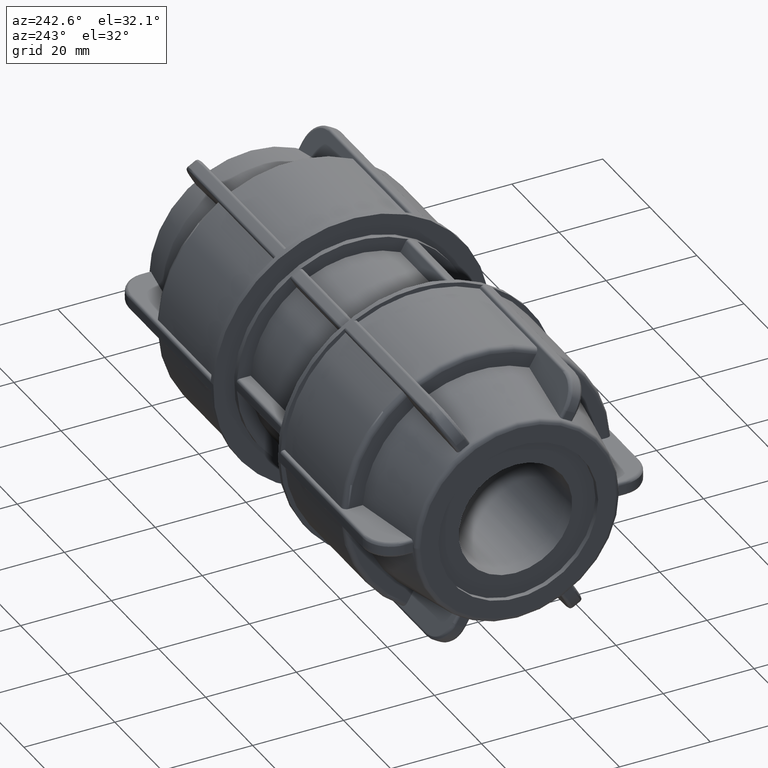
[diagram: clean part render]
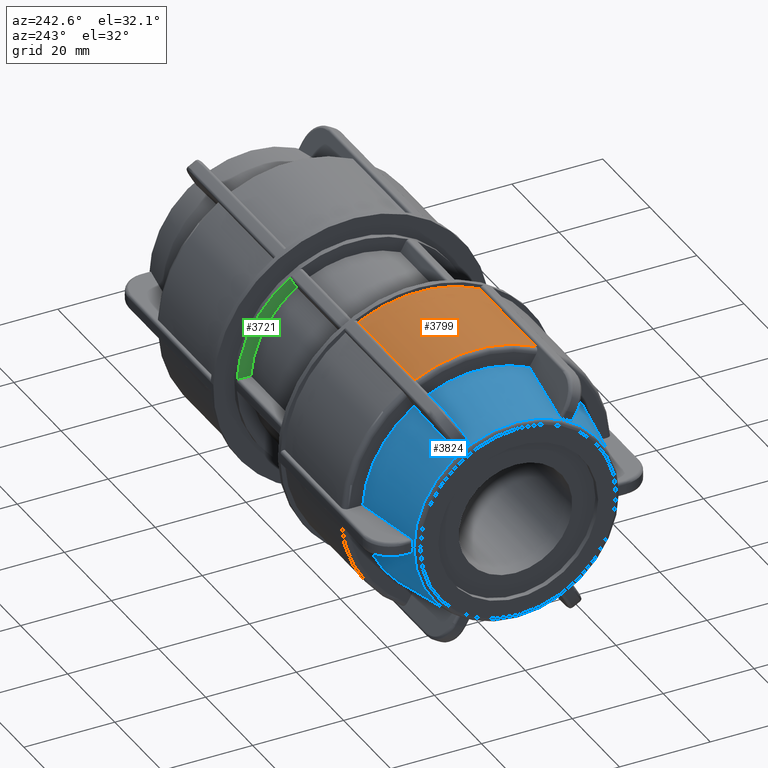
[diagram: same view with three faces highlighted in distinct colors, each labeled with its STEP entity id]
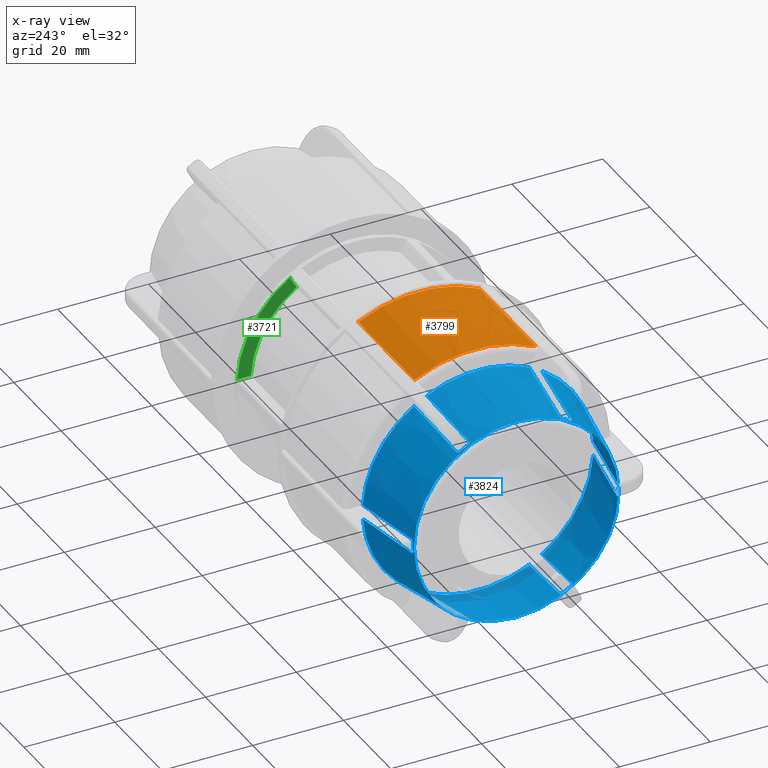
[diagram: x-ray of the same camera — body ghosted, the three highlighted faces saturated]
A machine part, auxiliary view with three faces highlighted in distinct colors.
The next image is the same camera in x-ray (body ghosted, the three faces saturated) — at least one of them is partly hidden behind the body in this view.
Their STEP definitions:

[orange] entity #3799 — the highlighted cylindrical surface (partial cylindrical patch) has radius 29.585 mm, axis along (1, 0, 0).
#413=FACE_OUTER_BOUND('',#655,.T.);
#655=EDGE_LOOP('',(#2968,#2969,#2970,#2971));
#894=LINE('',#6319,#1122);
#909=LINE('',#6588,#1137);
#1122=VECTOR('',#4796,23.94);
#1137=VECTOR('',#4861,23.94);
#1368=CIRCLE('',#4137,29.585);
#1374=CIRCLE('',#4149,29.585);
#1640=VERTEX_POINT('',#6316);
#1641=VERTEX_POINT('',#6318);
#1668=VERTEX_POINT('',#6576);
#1669=VERTEX_POINT('',#6587);
#2084=EDGE_CURVE('',#1641,#1640,#894,.T.);
#2127=EDGE_CURVE('',#1669,#1668,#909,.T.);
#2165=EDGE_CURVE('',#1641,#1668,#1368,.T.);
#2173=EDGE_CURVE('',#1669,#1640,#1374,.T.);
#2968=ORIENTED_EDGE('',*,*,#2084,.T.);
#2969=ORIENTED_EDGE('',*,*,#2173,.F.);
#2970=ORIENTED_EDGE('',*,*,#2127,.T.);
#2971=ORIENTED_EDGE('',*,*,#2165,.F.);
#3647=CYLINDRICAL_SURFACE('',#4148,29.585);
#3799=ADVANCED_FACE('',(#413),#3647,.T.);
#4137=AXIS2_PLACEMENT_3D('',#6712,#4927,#4928);
#4148=AXIS2_PLACEMENT_3D('',#6736,#4950,#4951);
#4149=AXIS2_PLACEMENT_3D('',#6737,#4952,#4953);
#4796=DIRECTION('',(1.,3.06161699786838E-16,0.));
#4861=DIRECTION('',(-1.,-3.06161699786838E-16,0.));
#4927=DIRECTION('center_axis',(-1.,-3.06161699786838E-16,0.));
#4928=DIRECTION('ref_axis',(3.04903230524908E-16,-1.,1.83697019872103E-16));
#4950=DIRECTION('center_axis',(1.,3.06161699786838E-16,0.));
#4951=DIRECTION('ref_axis',(-1.75123446677369E-16,1.,0.));
#4952=DIRECTION('center_axis',(1.,3.06161699786838E-16,0.));
#4953=DIRECTION('ref_axis',(0.,0.,-1.));
#6316=CARTESIAN_POINT('',(-14.82,-13.3852109289219,26.3838653989189));
#6318=CARTESIAN_POINT('',(-38.76,-13.3852109289219,26.3838653989189));
#6319=CARTESIAN_POINT('',(-27.36,-13.3852109289219,26.3838653989189));
#6576=CARTESIAN_POINT('',(-38.76,13.3852109289219,26.3838653989189));
#6587=CARTESIAN_POINT('',(-14.82,13.3852109289219,26.3838653989189));
#6588=CARTESIAN_POINT('',(-27.36,13.3852109289219,26.3838653989189));
#6712=CARTESIAN_POINT('Origin',(-38.76,-1.18668274837379E-14,0.));
#6736=CARTESIAN_POINT('Origin',(-27.36,-8.3765841061679E-15,0.));
#6737=CARTESIAN_POINT('Origin',(-14.82,-4.53731639084095E-15,0.));

[blue] entity #3824 — the highlighted conical surface has half-angle 10 deg.
#15=CONICAL_SURFACE('',#4187,23.9075956850574,10.);
#43=(
BOUNDED_CURVE()
B_SPLINE_CURVE(2,(#5802,#5803,#5804),.UNSPECIFIED.,.F.,.F.)
B_SPLINE_CURVE_WITH_KNOTS((3,3),(0.0655542960106001,1.62073025413874),
 .UNSPECIFIED.)
CURVE()
GEOMETRIC_REPRESENTATION_ITEM()
RATIONAL_B_SPLINE_CURVE((1.0001342619013,1.00165971064188,1.))
REPRESENTATION_ITEM('')
);
#44=(
BOUNDED_CURVE()
B_SPLINE_CURVE(2,(#6011,#6012,#6013),.UNSPECIFIED.,.F.,.F.)
B_SPLINE_CURVE_WITH_KNOTS((3,3),(0.0655542960451658,1.62073025413874),
 .UNSPECIFIED.)
CURVE()
GEOMETRIC_REPRESENTATION_ITEM()
RATIONAL_B_SPLINE_CURVE((1.00013426190728,1.00165971071495,1.))
REPRESENTATION_ITEM('')
);
#45=(
BOUNDED_CURVE()
B_SPLINE_CURVE(2,(#6172,#6173,#6174),.UNSPECIFIED.,.F.,.F.)
B_SPLINE_CURVE_WITH_KNOTS((3,3),(0.0655542960181549,1.62073025413874),
 .UNSPECIFIED.)
CURVE()
GEOMETRIC_REPRESENTATION_ITEM()
RATIONAL_B_SPLINE_CURVE((1.00013426189628,1.00165971057963,1.))
REPRESENTATION_ITEM('')
);
#46=(
BOUNDED_CURVE()
B_SPLINE_CURVE(2,(#6333,#6334,#6335),.UNSPECIFIED.,.F.,.F.)
B_SPLINE_CURVE_WITH_KNOTS((3,3),(0.0655542960456928,1.62073025413874),
 .UNSPECIFIED.)
CURVE()
GEOMETRIC_REPRESENTATION_ITEM()
RATIONAL_B_SPLINE_CURVE((1.00013426190634,1.00165971070329,1.))
REPRESENTATION_ITEM('')
);
#47=(
BOUNDED_CURVE()
B_SPLINE_CURVE(2,(#6494,#6495,#6496),.UNSPECIFIED.,.F.,.F.)
B_SPLINE_CURVE_WITH_KNOTS((3,3),(0.0655542960915158,1.62073025413874),
 .UNSPECIFIED.)
CURVE()
GEOMETRIC_REPRESENTATION_ITEM()
RATIONAL_B_SPLINE_CURVE((1.00013426191013,1.001659710749,1.))
REPRESENTATION_ITEM('')
);
#48=(
BOUNDED_CURVE()
B_SPLINE_CURVE(2,(#6571,#6572,#6573),.UNSPECIFIED.,.F.,.F.)
B_SPLINE_CURVE_WITH_KNOTS((3,3),(0.,1.55517595804826),.UNSPECIFIED.)
CURVE()
GEOMETRIC_REPRESENTATION_ITEM()
RATIONAL_B_SPLINE_CURVE((1.,1.0016597107714,1.00013426191194))
REPRESENTATION_ITEM('')
);
#49=(
BOUNDED_CURVE()
B_SPLINE_CURVE(2,(#6592,#6593,#6594),.UNSPECIFIED.,.F.,.F.)
B_SPLINE_CURVE_WITH_KNOTS((3,3),(0.,1.55517595812849),.UNSPECIFIED.)
CURVE()
GEOMETRIC_REPRESENTATION_ITEM()
RATIONAL_B_SPLINE_CURVE((1.,1.00165971063915,1.00013426190108))
REPRESENTATION_ITEM('')
);
#50=(
BOUNDED_CURVE()
B_SPLINE_CURVE(2,(#6613,#6614,#6615),.UNSPECIFIED.,.F.,.F.)
B_SPLINE_CURVE_WITH_KNOTS((3,3),(0.,1.55517595815112),.UNSPECIFIED.)
CURVE()
GEOMETRIC_REPRESENTATION_ITEM()
RATIONAL_B_SPLINE_CURVE((1.,1.00165971053632,1.00013426189272))
REPRESENTATION_ITEM('')
);
#51=(
BOUNDED_CURVE()
B_SPLINE_CURVE(2,(#6634,#6635,#6636),.UNSPECIFIED.,.F.,.F.)
B_SPLINE_CURVE_WITH_KNOTS((3,3),(0.,1.55517595819494),.UNSPECIFIED.)
CURVE()
GEOMETRIC_REPRESENTATION_ITEM()
RATIONAL_B_SPLINE_CURVE((1.,1.00165971051236,1.00013426189069))
REPRESENTATION_ITEM('')
);
#52=(
BOUNDED_CURVE()
B_SPLINE_CURVE(2,(#6655,#6656,#6657),.UNSPECIFIED.,.F.,.F.)
B_SPLINE_CURVE_WITH_KNOTS((3,3),(0.,1.555175958114),.UNSPECIFIED.)
CURVE()
GEOMETRIC_REPRESENTATION_ITEM()
RATIONAL_B_SPLINE_CURVE((1.,1.00165971072814,1.00013426190831))
REPRESENTATION_ITEM('')
);
#53=(
BOUNDED_CURVE()
B_SPLINE_CURVE(2,(#6832,#6833,#6834),.UNSPECIFIED.,.F.,.F.)
B_SPLINE_CURVE_WITH_KNOTS((3,3),(0.0655542960886952,1.62073025413874),
 .UNSPECIFIED.)
CURVE()
GEOMETRIC_REPRESENTATION_ITEM()
RATIONAL_B_SPLINE_CURVE((1.00013426190674,1.00165971070718,1.))
REPRESENTATION_ITEM('')
);
#54=(
BOUNDED_CURVE()
B_SPLINE_CURVE(2,(#6906,#6907,#6908),.UNSPECIFIED.,.F.,.F.)
B_SPLINE_CURVE_WITH_KNOTS((3,3),(0.,1.55517595805027),.UNSPECIFIED.)
CURVE()
GEOMETRIC_REPRESENTATION_ITEM()
RATIONAL_B_SPLINE_CURVE((1.,1.00165971071088,1.00013426190704))
REPRESENTATION_ITEM('')
);
#69=B_SPLINE_CURVE_WITH_KNOTS('',3,(#5770,#5771,#5772,#5773,#5774,#5775,
#5776,#5777,#5778,#5779,#5780,#5781),.UNSPECIFIED.,.F.,.F.,(4,2,2,2,2,4),
(0.0929406337704439,0.115338691300479,0.138205483813319,0.161387780498709,
0.184570077184099,0.18533791770905),.UNSPECIFIED.);
#73=B_SPLINE_CURVE_WITH_KNOTS('',3,(#5862,#5863,#5864,#5865,#5866,#5867,
#5868,#5869,#5870,#5871,#5872,#5873),.UNSPECIFIED.,.F.,.F.,(4,2,2,2,2,4),
(0.185348184181941,0.186116024706894,0.209298321392283,0.232480618077673,
0.255347410590512,0.277745468120547),.UNSPECIFIED.);
#76=B_SPLINE_CURVE_WITH_KNOTS('',3,(#5979,#5980,#5981,#5982,#5983,#5984,
#5985,#5986,#5987,#5988,#5989,#5990),.UNSPECIFIED.,.F.,.F.,(4,2,2,2,2,4),
(0.0929406337704433,0.115338691300479,0.138205483813318,0.161387780498708,
0.184570077184098,0.18533791770905),.UNSPECIFIED.);
#80=B_SPLINE_CURVE_WITH_KNOTS('',3,(#6068,#6069,#6070,#6071,#6072,#6073,
#6074,#6075,#6076,#6077,#6078,#6079),.UNSPECIFIED.,.F.,.F.,(4,2,2,2,2,4),
(0.185348184181942,0.186116024706894,0.209298321392283,0.232480618077673,
0.255347410590513,0.277745468120548),.UNSPECIFIED.);
#83=B_SPLINE_CURVE_WITH_KNOTS('',3,(#6140,#6141,#6142,#6143,#6144,#6145,
#6146,#6147,#6148,#6149,#6150,#6151),.UNSPECIFIED.,.F.,.F.,(4,2,2,2,2,4),
(0.0929406337704437,0.115338691300479,0.138205483813318,0.161387780498708,
0.184570077184098,0.18533791770905),.UNSPECIFIED.);
#87=B_SPLINE_CURVE_WITH_KNOTS('',3,(#6229,#6230,#6231,#6232,#6233,#6234,
#6235,#6236,#6237,#6238,#6239,#6240),.UNSPECIFIED.,.F.,.F.,(4,2,2,2,2,4),
(0.185348184181942,0.186116024706894,0.209298321392283,0.232480618077673,
0.255347410590513,0.277745468120548),.UNSPECIFIED.);
#90=B_SPLINE_CURVE_WITH_KNOTS('',3,(#6301,#6302,#6303,#6304,#6305,#6306,
#6307,#6308,#6309,#6310,#6311,#6312),.UNSPECIFIED.,.F.,.F.,(4,2,2,2,2,4),
(0.0929406337704436,0.115338691300479,0.138205483813318,0.161387780498708,
0.184570077184098,0.185337917709051),.UNSPECIFIED.);
#94=B_SPLINE_CURVE_WITH_KNOTS('',3,(#6390,#6391,#6392,#6393,#6394,#6395,
#6396,#6397,#6398,#6399,#6400,#6401),.UNSPECIFIED.,.F.,.F.,(4,2,2,2,2,4),
(0.185348184181941,0.186116024706893,0.209298321392283,0.232480618077673,
0.255347410590512,0.277745468120547),.UNSPECIFIED.);
#97=B_SPLINE_CURVE_WITH_KNOTS('',3,(#6462,#6463,#6464,#6465,#6466,#6467,
#6468,#6469,#6470,#6471,#6472,#6473),.UNSPECIFIED.,.F.,.F.,(4,2,2,2,2,4),
(0.0929406337704441,0.115338691300479,0.138205483813319,0.161387780498709,
0.184570077184098,0.185337917709051),.UNSPECIFIED.);
#101=B_SPLINE_CURVE_WITH_KNOTS('',3,(#6551,#6552,#6553,#6554,#6555,#6556,
#6557,#6558,#6559,#6560,#6561,#6562),.UNSPECIFIED.,.F.,.F.,(4,2,2,2,2,4),
(0.185348184181941,0.186116024706894,0.209298321392284,0.232480618077674,
0.255347410590513,0.277745468120548),.UNSPECIFIED.);
#111=B_SPLINE_CURVE_WITH_KNOTS('',3,(#6817,#6818,#6819,#6820,#6821,#6822,
#6823,#6824,#6825,#6826,#6827,#6828),.UNSPECIFIED.,.F.,.F.,(4,2,2,2,2,4),
(0.0929406337704434,0.115338691300479,0.138205483813318,0.161387780498708,
0.184570077184097,0.18533791770905),.UNSPECIFIED.);
#114=B_SPLINE_CURVE_WITH_KNOTS('',3,(#6887,#6888,#6889,#6890,#6891,#6892,
#6893,#6894,#6895,#6896,#6897,#6898),.UNSPECIFIED.,.F.,.F.,(4,2,2,2,2,4),
(0.185348184181941,0.186116024706894,0.209298321392284,0.232480618077673,
0.255347410590513,0.277745468120548),.UNSPECIFIED.);
#203=FACE_BOUND('',#685,.T.);
#438=FACE_OUTER_BOUND('',#684,.T.);
#684=EDGE_LOOP('',(#3080,#3081,#3082,#3083,#3084,#3085,#3086,#3087,#3088,
#3089,#3090,#3091,#3092,#3093,#3094,#3095,#3096,#3097,#3098,#3099,#3100,
#3101,#3102,#3103,#3104,#3105,#3106,#3107,#3108,#3109,#3110,#3111,#3112,
#3113,#3114,#3115));
#685=EDGE_LOOP('',(#3116));
#1308=CIRCLE('',#4034,22.6010127580076);
#1329=CIRCLE('',#4063,22.6010127580076);
#1337=CIRCLE('',#4078,22.6010127580076);
#1345=CIRCLE('',#4093,22.6010127580076);
#1353=CIRCLE('',#4108,22.6010127580076);
#1356=CIRCLE('',#4118,25.4151913701147);
#1358=CIRCLE('',#4121,25.4151913701147);
#1360=CIRCLE('',#4124,25.4151913701147);
#1362=CIRCLE('',#4127,25.4151913701147);
#1363=CIRCLE('',#4129,25.4151913701147);
#1366=CIRCLE('',#4133,25.4151913701147);
#1386=CIRCLE('',#4180,22.6010127580076);
#1389=CIRCLE('',#4186,22.5457081218349);
#1567=VERTEX_POINT('',#5768);
#1568=VERTEX_POINT('',#5769);
#1572=VERTEX_POINT('',#5800);
#1579=VERTEX_POINT('',#5860);
#1580=VERTEX_POINT('',#5861);
#1606=VERTEX_POINT('',#5977);
#1607=VERTEX_POINT('',#5978);
#1611=VERTEX_POINT('',#6009);
#1616=VERTEX_POINT('',#6066);
#1617=VERTEX_POINT('',#6067);
#1622=VERTEX_POINT('',#6138);
#1623=VERTEX_POINT('',#6139);
#1627=VERTEX_POINT('',#6170);
#1632=VERTEX_POINT('',#6227);
#1633=VERTEX_POINT('',#6228);
#1638=VERTEX_POINT('',#6299);
#1639=VERTEX_POINT('',#6300);
#1643=VERTEX_POINT('',#6331);
#1648=VERTEX_POINT('',#6388);
#1649=VERTEX_POINT('',#6389);
#1654=VERTEX_POINT('',#6460);
#1655=VERTEX_POINT('',#6461);
#1659=VERTEX_POINT('',#6492);
#1664=VERTEX_POINT('',#6549);
#1665=VERTEX_POINT('',#6550);
#1666=VERTEX_POINT('',#6570);
#1670=VERTEX_POINT('',#6591);
#1674=VERTEX_POINT('',#6612);
#1678=VERTEX_POINT('',#6633);
#1682=VERTEX_POINT('',#6654);
#1687=VERTEX_POINT('',#6677);
#1688=VERTEX_POINT('',#6690);
#1700=VERTEX_POINT('',#6815);
#1701=VERTEX_POINT('',#6816);
#1705=VERTEX_POINT('',#6885);
#1706=VERTEX_POINT('',#6886);
#1708=VERTEX_POINT('',#6912);
#1981=EDGE_CURVE('',#1567,#1568,#69,.F.);
#1988=EDGE_CURVE('',#1567,#1572,#43,.T.);
#1996=EDGE_CURVE('',#1579,#1580,#73,.F.);
#1999=EDGE_CURVE('',#1579,#1568,#1308,.T.);
#2030=EDGE_CURVE('',#1606,#1607,#76,.F.);
#2037=EDGE_CURVE('',#1606,#1611,#44,.T.);
#2044=EDGE_CURVE('',#1616,#1617,#80,.F.);
#2047=EDGE_CURVE('',#1616,#1607,#1329,.T.);
#2055=EDGE_CURVE('',#1622,#1623,#83,.F.);
#2062=EDGE_CURVE('',#1622,#1627,#45,.T.);
#2069=EDGE_CURVE('',#1632,#1633,#87,.F.);
#2072=EDGE_CURVE('',#1632,#1623,#1337,.T.);
#2080=EDGE_CURVE('',#1638,#1639,#90,.F.);
#2087=EDGE_CURVE('',#1638,#1643,#46,.T.);
#2094=EDGE_CURVE('',#1648,#1649,#94,.F.);
#2097=EDGE_CURVE('',#1648,#1639,#1345,.T.);
#2105=EDGE_CURVE('',#1654,#1655,#97,.F.);
#2112=EDGE_CURVE('',#1654,#1659,#47,.T.);
#2119=EDGE_CURVE('',#1664,#1665,#101,.F.);
#2122=EDGE_CURVE('',#1664,#1655,#1353,.T.);
#2124=EDGE_CURVE('',#1666,#1665,#48,.T.);
#2129=EDGE_CURVE('',#1670,#1580,#49,.T.);
#2134=EDGE_CURVE('',#1674,#1617,#50,.T.);
#2139=EDGE_CURVE('',#1678,#1633,#51,.T.);
#2144=EDGE_CURVE('',#1682,#1649,#52,.T.);
#2151=EDGE_CURVE('',#1687,#1659,#1356,.T.);
#2153=EDGE_CURVE('',#1666,#1643,#1358,.T.);
#2155=EDGE_CURVE('',#1682,#1627,#1360,.T.);
#2157=EDGE_CURVE('',#1678,#1611,#1362,.T.);
#2158=EDGE_CURVE('',#1670,#1688,#1363,.T.);
#2162=EDGE_CURVE('',#1674,#1572,#1366,.T.);
#2189=EDGE_CURVE('',#1700,#1701,#111,.F.);
#2192=EDGE_CURVE('',#1700,#1688,#53,.T.);
#2198=EDGE_CURVE('',#1705,#1706,#114,.F.);
#2201=EDGE_CURVE('',#1705,#1701,#1386,.T.);
#2203=EDGE_CURVE('',#1687,#1706,#54,.T.);
#2205=EDGE_CURVE('',#1708,#1708,#1389,.T.);
#3080=ORIENTED_EDGE('',*,*,#1988,.T.);
#3081=ORIENTED_EDGE('',*,*,#2162,.F.);
#3082=ORIENTED_EDGE('',*,*,#2134,.T.);
#3083=ORIENTED_EDGE('',*,*,#2044,.F.);
#3084=ORIENTED_EDGE('',*,*,#2047,.T.);
#3085=ORIENTED_EDGE('',*,*,#2030,.F.);
#3086=ORIENTED_EDGE('',*,*,#2037,.T.);
#3087=ORIENTED_EDGE('',*,*,#2157,.F.);
#3088=ORIENTED_EDGE('',*,*,#2139,.T.);
#3089=ORIENTED_EDGE('',*,*,#2069,.F.);
#3090=ORIENTED_EDGE('',*,*,#2072,.T.);
#3091=ORIENTED_EDGE('',*,*,#2055,.F.);
#3092=ORIENTED_EDGE('',*,*,#2062,.T.);
#3093=ORIENTED_EDGE('',*,*,#2155,.F.);
#3094=ORIENTED_EDGE('',*,*,#2144,.T.);
#3095=ORIENTED_EDGE('',*,*,#2094,.F.);
#3096=ORIENTED_EDGE('',*,*,#2097,.T.);
#3097=ORIENTED_EDGE('',*,*,#2080,.F.);
#3098=ORIENTED_EDGE('',*,*,#2087,.T.);
#3099=ORIENTED_EDGE('',*,*,#2153,.F.);
#3100=ORIENTED_EDGE('',*,*,#2124,.T.);
#3101=ORIENTED_EDGE('',*,*,#2119,.F.);
#3102=ORIENTED_EDGE('',*,*,#2122,.T.);
#3103=ORIENTED_EDGE('',*,*,#2105,.F.);
#3104=ORIENTED_EDGE('',*,*,#2112,.T.);
#3105=ORIENTED_EDGE('',*,*,#2151,.F.);
#3106=ORIENTED_EDGE('',*,*,#2203,.T.);
#3107=ORIENTED_EDGE('',*,*,#2198,.F.);
#3108=ORIENTED_EDGE('',*,*,#2201,.T.);
#3109=ORIENTED_EDGE('',*,*,#2189,.F.);
#3110=ORIENTED_EDGE('',*,*,#2192,.T.);
#3111=ORIENTED_EDGE('',*,*,#2158,.F.);
#3112=ORIENTED_EDGE('',*,*,#2129,.T.);
#3113=ORIENTED_EDGE('',*,*,#1996,.F.);
#3114=ORIENTED_EDGE('',*,*,#1999,.T.);
#3115=ORIENTED_EDGE('',*,*,#1981,.F.);
#3116=ORIENTED_EDGE('',*,*,#2205,.F.);
#3824=ADVANCED_FACE('',(#438,#203),#15,.T.);
#4034=AXIS2_PLACEMENT_3D('',#5877,#4658,#4659);
#4063=AXIS2_PLACEMENT_3D('',#6083,#4735,#4736);
#4078=AXIS2_PLACEMENT_3D('',#6244,#4774,#4775);
#4093=AXIS2_PLACEMENT_3D('',#6405,#4813,#4814);
#4108=AXIS2_PLACEMENT_3D('',#6566,#4852,#4853);
#4118=AXIS2_PLACEMENT_3D('',#6679,#4888,#4889);
#4121=AXIS2_PLACEMENT_3D('',#6682,#4894,#4895);
#4124=AXIS2_PLACEMENT_3D('',#6685,#4900,#4901);
#4127=AXIS2_PLACEMENT_3D('',#6688,#4906,#4907);
#4129=AXIS2_PLACEMENT_3D('',#6691,#4910,#4911);
#4133=AXIS2_PLACEMENT_3D('',#6697,#4919,#4920);
#4180=AXIS2_PLACEMENT_3D('',#6902,#5023,#5024);
#4186=AXIS2_PLACEMENT_3D('',#6913,#5035,#5036);
#4187=AXIS2_PLACEMENT_3D('',#6914,#5037,#5038);
#4658=DIRECTION('center_axis',(-1.,-2.40642573232103E-16,1.13482456060336E-16));
#4659=DIRECTION('ref_axis',(-1.75123446677369E-16,1.,0.));
#4735=DIRECTION('center_axis',(-1.,-1.09604320122634E-16,1.13482456060336E-16));
#4736=DIRECTION('ref_axis',(-1.75123446677369E-16,1.,0.));
#4774=DIRECTION('center_axis',(-1.,-4.40851935678996E-17,1.23259516440783E-32));
#4775=DIRECTION('ref_axis',(-1.75123446677369E-16,1.,0.));
#4813=DIRECTION('center_axis',(-1.,-1.09604320122634E-16,-1.13482456060336E-16));
#4814=DIRECTION('ref_axis',(-1.75123446677369E-16,1.,0.));
#4852=DIRECTION('center_axis',(-1.,-2.40642573232104E-16,-1.13482456060336E-16));
#4853=DIRECTION('ref_axis',(-1.75123446677369E-16,1.,0.));
#4888=DIRECTION('center_axis',(1.,3.06161699786838E-16,0.));
#4889=DIRECTION('ref_axis',(0.,0.,-1.));
#4894=DIRECTION('center_axis',(1.,3.06161699786838E-16,0.));
#4895=DIRECTION('ref_axis',(0.,0.,-1.));
#4900=DIRECTION('center_axis',(1.,3.06161699786838E-16,0.));
#4901=DIRECTION('ref_axis',(0.,0.,-1.));
#4906=DIRECTION('center_axis',(1.,3.06161699786838E-16,0.));
#4907=DIRECTION('ref_axis',(0.,0.,-1.));
#4910=DIRECTION('center_axis',(1.,3.06161699786838E-16,0.));
#4911=DIRECTION('ref_axis',(0.,0.,-1.));
#4919=DIRECTION('center_axis',(1.,3.06161699786838E-16,0.));
#4920=DIRECTION('ref_axis',(0.,0.,-1.));
#5023=DIRECTION('center_axis',(-1.,-3.06161699786838E-16,0.));
#5024=DIRECTION('ref_axis',(-1.75123446677369E-16,1.,0.));
#5035=DIRECTION('center_axis',(-1.,-3.93945674671423E-16,5.34728436448098E-32));
#5036=DIRECTION('ref_axis',(3.93945674671423E-16,-1.,3.06161699786838E-17));
#5037=DIRECTION('center_axis',(1.,3.06161699786838E-16,0.));
#5038=DIRECTION('ref_axis',(-1.75123446677369E-16,1.,0.));
#5768=CARTESIAN_POINT('',(-55.25,9.94042720757563,-20.4173249724611));
#5769=CARTESIAN_POINT('',(-55.86,10.4322946955236,-20.0492644521782));
#5770=CARTESIAN_POINT('Ctrl Pts',(-55.86,10.4322946955236,-20.0492644521782));
#5771=CARTESIAN_POINT('Ctrl Pts',(-55.86,10.3658858286557,-20.0838191796702));
#5772=CARTESIAN_POINT('Ctrl Pts',(-55.8454314138073,10.2962725015386,-20.1224762525526));
#5773=CARTESIAN_POINT('Ctrl Pts',(-55.7855987874435,10.1689040960951,-20.1989590460628));
#5774=CARTESIAN_POINT('Ctrl Pts',(-55.7396642789802,10.1114407461394,-20.2367738582365));
#5775=CARTESIAN_POINT('Ctrl Pts',(-55.6327944579925,10.0225964086339,-20.3019416647875));
#5776=CARTESIAN_POINT('Ctrl Pts',(-55.5645201742986,9.9856249632505,-20.3335149258585));
#5777=CARTESIAN_POINT('Ctrl Pts',(-55.4149581703995,9.94128998502653,-20.3845723913928));
#5778=CARTESIAN_POINT('Ctrl Pts',(-55.3336784113928,9.93392606857397,-20.4040795804956));
#5779=CARTESIAN_POINT('Ctrl Pts',(-55.2550574753579,9.93999441474754,-20.4165438385737));
#5780=CARTESIAN_POINT('Ctrl Pts',(-55.2525313182358,9.9402034817096,-20.4169374678942));
#5781=CARTESIAN_POINT('Ctrl Pts',(-55.25,9.94042720757547,-20.4173249724608));
#5800=CARTESIAN_POINT('',(-39.9,11.2967482493734,-22.7665419282295));
#5802=CARTESIAN_POINT('Ctrl Pts',(-55.2500000000004,9.94042720757559,-20.417324972461));
#5803=CARTESIAN_POINT('Ctrl Pts',(-48.0085874754744,10.5804460184261,-21.5258700706539));
#5804=CARTESIAN_POINT('Ctrl Pts',(-39.9,11.2967482493734,-22.7665419282296));
#5860=CARTESIAN_POINT('',(-55.86,12.1470249950168,-19.0592644521782));
#5861=CARTESIAN_POINT('',(-55.25,12.7117084996858,-18.8173249724611));
#5862=CARTESIAN_POINT('Ctrl Pts',(-55.2499999999999,12.7117084996857,-18.8173249724608));
#5863=CARTESIAN_POINT('Ctrl Pts',(-55.2525313182358,12.7114847738198,-18.8169374678942));
#5864=CARTESIAN_POINT('Ctrl Pts',(-55.2550574753579,12.7112484143096,-18.8165595959337));
#5865=CARTESIAN_POINT('Ctrl Pts',(-55.3336784113928,12.7034882232615,-18.8050721249494));
#5866=CARTESIAN_POINT('Ctrl Pts',(-55.4149581703995,12.6829125437158,-18.8016958691173));
#5867=CARTESIAN_POINT('Ctrl Pts',(-55.5645201742986,12.6165279923982,-18.8145623537683));
#5868=CARTESIAN_POINT('Ctrl Pts',(-55.6327944579925,12.5706990235387,-18.8307939341494));
#5869=CARTESIAN_POINT('Ctrl Pts',(-55.7396642789802,12.4698398788039,-18.8751514841361));
#5870=CARTESIAN_POINT('Ctrl Pts',(-55.7855987874435,12.4083596158443,-18.9060087988974));
#5871=CARTESIAN_POINT('Ctrl Pts',(-55.8454314138073,12.2784393709903,-18.9780716768959));
#5872=CARTESIAN_POINT('Ctrl Pts',(-55.86,12.2101547002796,-19.0190300501801));
#5873=CARTESIAN_POINT('Ctrl Pts',(-55.86,12.1470249950168,-19.0592644521782));
#5877=CARTESIAN_POINT('Origin',(-55.86,-1.71021925500928E-14,0.));
#5977=CARTESIAN_POINT('',(-55.25,-12.7117084996859,-18.8173249724611));
#5978=CARTESIAN_POINT('',(-55.86,-12.1470249950168,-19.0592644521782));
#5979=CARTESIAN_POINT('Ctrl Pts',(-55.86,-12.1470249950168,-19.0592644521782));
#5980=CARTESIAN_POINT('Ctrl Pts',(-55.86,-12.2101547002797,-19.0190300501801));
#5981=CARTESIAN_POINT('Ctrl Pts',(-55.8454314138073,-12.2784393709903,-18.9780716768959));
#5982=CARTESIAN_POINT('Ctrl Pts',(-55.7855987874435,-12.4083596158443,-18.9060087988974));
#5983=CARTESIAN_POINT('Ctrl Pts',(-55.7396642789802,-12.4698398788039,-18.8751514841361));
#5984=CARTESIAN_POINT('Ctrl Pts',(-55.6327944579925,-12.5706990235387,-18.8307939341494));
#5985=CARTESIAN_POINT('Ctrl Pts',(-55.5645201742986,-12.6165279923982,-18.8145623537682));
#5986=CARTESIAN_POINT('Ctrl Pts',(-55.4149581703995,-12.6829125437158,-18.8016958691172));
#5987=CARTESIAN_POINT('Ctrl Pts',(-55.3336784113928,-12.7034882232615,-18.8050721249493));
#5988=CARTESIAN_POINT('Ctrl Pts',(-55.2550574753579,-12.7112484143097,-18.8165595959337));
#5989=CARTESIAN_POINT('Ctrl Pts',(-55.2525313182358,-12.7114847738199,-18.8169374678941));
#5990=CARTESIAN_POINT('Ctrl Pts',(-55.25,-12.7117084996857,-18.8173249724608));
#6009=CARTESIAN_POINT('',(-39.9,-14.0680295414837,-21.1665419282295));
#6011=CARTESIAN_POINT('Ctrl Pts',(-55.2500000000004,-12.7117084996859,-18.817324972461));
#6012=CARTESIAN_POINT('Ctrl Pts',(-48.008587479802,-13.3517273101539,-19.9258700699915));
#6013=CARTESIAN_POINT('Ctrl Pts',(-39.9,-14.0680295414837,-21.1665419282295));
#6066=CARTESIAN_POINT('',(-55.86,-10.4322946955236,-20.0492644521782));
#6067=CARTESIAN_POINT('',(-55.25,-9.94042720757569,-20.4173249724611));
#6068=CARTESIAN_POINT('Ctrl Pts',(-55.25,-9.94042720757554,-20.4173249724608));
#6069=CARTESIAN_POINT('Ctrl Pts',(-55.2525313182358,-9.94020348170967,-20.4169374678941));
#6070=CARTESIAN_POINT('Ctrl Pts',(-55.2550574753579,-9.9399944147476,-20.4165438385737));
#6071=CARTESIAN_POINT('Ctrl Pts',(-55.3336784113928,-9.93392606857404,-20.4040795804956));
#6072=CARTESIAN_POINT('Ctrl Pts',(-55.4149581703995,-9.9412899850266,-20.3845723913928));
#6073=CARTESIAN_POINT('Ctrl Pts',(-55.5645201742986,-9.98562496325057,-20.3335149258584));
#6074=CARTESIAN_POINT('Ctrl Pts',(-55.6327944579925,-10.022596408634,-20.3019416647874));
#6075=CARTESIAN_POINT('Ctrl Pts',(-55.7396642789802,-10.1114407461395,-20.2367738582365));
#6076=CARTESIAN_POINT('Ctrl Pts',(-55.7855987874435,-10.1689040960951,-20.1989590460627));
#6077=CARTESIAN_POINT('Ctrl Pts',(-55.8454314138073,-10.2962725015387,-20.1224762525526));
#6078=CARTESIAN_POINT('Ctrl Pts',(-55.86,-10.3658858286558,-20.0838191796702));
#6079=CARTESIAN_POINT('Ctrl Pts',(-55.86,-10.4322946955236,-20.0492644521782));
#6083=CARTESIAN_POINT('Origin',(-55.86,-1.71021925500928E-14,0.));
#6138=CARTESIAN_POINT('',(-55.25,-22.6521357072616,1.60000000000001));
#6139=CARTESIAN_POINT('',(-55.86,-22.5793196905404,0.990000000000007));
#6140=CARTESIAN_POINT('Ctrl Pts',(-55.86,-22.5793196905404,0.990000000000007));
#6141=CARTESIAN_POINT('Ctrl Pts',(-55.86,-22.5760405289354,1.06478912949014));
#6142=CARTESIAN_POINT('Ctrl Pts',(-55.8454314138073,-22.574711872529,1.14440457565667));
#6143=CARTESIAN_POINT('Ctrl Pts',(-55.7855987874435,-22.5772637119394,1.29295024716538));
#6144=CARTESIAN_POINT('Ctrl Pts',(-55.7396642789802,-22.5812806249433,1.36162237410043));
#6145=CARTESIAN_POINT('Ctrl Pts',(-55.6327944579925,-22.5932954321727,1.47114773063807));
#6146=CARTESIAN_POINT('Ctrl Pts',(-55.5645201742986,-22.6021529556488,1.51895257209021));
#6147=CARTESIAN_POINT('Ctrl Pts',(-55.4149581703995,-22.6242025287424,1.58287652227558));
#6148=CARTESIAN_POINT('Ctrl Pts',(-55.3336784113928,-22.6374142918355,1.59900745554623));
#6149=CARTESIAN_POINT('Ctrl Pts',(-55.2550574753579,-22.6512428290573,1.59998424264001));
#6150=CARTESIAN_POINT('Ctrl Pts',(-55.2525313182358,-22.6516882555295,1.60000000000001));
#6151=CARTESIAN_POINT('Ctrl Pts',(-55.25,-22.6521357072612,1.60000000000001));
#6170=CARTESIAN_POINT('',(-39.9,-25.3647777908571,1.60000000000001));
#6172=CARTESIAN_POINT('Ctrl Pts',(-55.2500000000004,-22.6521357072615,1.60000000000001));
#6173=CARTESIAN_POINT('Ctrl Pts',(-48.0085874758547,-23.9321733288952,1.60000000000001));
#6174=CARTESIAN_POINT('Ctrl Pts',(-39.9,-25.3647777908571,1.60000000000001));
#6227=CARTESIAN_POINT('',(-55.86,-22.5793196905404,-0.989999999999994));
#6228=CARTESIAN_POINT('',(-55.25,-22.6521357072615,-1.59999999999999));
#6229=CARTESIAN_POINT('Ctrl Pts',(-55.25,-22.6521357072612,-1.59999999999999));
#6230=CARTESIAN_POINT('Ctrl Pts',(-55.2525313182358,-22.6516882555295,-1.59999999999999));
#6231=CARTESIAN_POINT('Ctrl Pts',(-55.2550574753579,-22.6512428290573,-1.59998424264));
#6232=CARTESIAN_POINT('Ctrl Pts',(-55.3336784113928,-22.6374142918355,-1.59900745554621));
#6233=CARTESIAN_POINT('Ctrl Pts',(-55.4149581703995,-22.6242025287424,-1.58287652227557));
#6234=CARTESIAN_POINT('Ctrl Pts',(-55.5645201742986,-22.6021529556488,-1.5189525720902));
#6235=CARTESIAN_POINT('Ctrl Pts',(-55.6327944579925,-22.5932954321727,-1.47114773063806));
#6236=CARTESIAN_POINT('Ctrl Pts',(-55.7396642789802,-22.5812806249433,-1.36162237410041));
#6237=CARTESIAN_POINT('Ctrl Pts',(-55.7855987874435,-22.5772637119394,-1.29295024716537));
#6238=CARTESIAN_POINT('Ctrl Pts',(-55.8454314138073,-22.574711872529,-1.14440457565666));
#6239=CARTESIAN_POINT('Ctrl Pts',(-55.86,-22.5760405289354,-1.06478912949012));
#6240=CARTESIAN_POINT('Ctrl Pts',(-55.86,-22.5793196905404,-0.989999999999994));
#6244=CARTESIAN_POINT('Origin',(-55.86,-1.71021925500928E-14,0.));
#6299=CARTESIAN_POINT('',(-55.25,-9.94042720757568,20.4173249724611));
#6300=CARTESIAN_POINT('',(-55.86,-10.4322946955236,20.0492644521782));
#6301=CARTESIAN_POINT('Ctrl Pts',(-55.86,-10.4322946955236,20.0492644521782));
#6302=CARTESIAN_POINT('Ctrl Pts',(-55.86,-10.3658858286558,20.0838191796702));
#6303=CARTESIAN_POINT('Ctrl Pts',(-55.8454314138073,-10.2962725015387,20.1224762525526));
#6304=CARTESIAN_POINT('Ctrl Pts',(-55.7855987874435,-10.1689040960951,20.1989590460628));
#6305=CARTESIAN_POINT('Ctrl Pts',(-55.7396642789802,-10.1114407461394,20.2367738582365));
#6306=CARTESIAN_POINT('Ctrl Pts',(-55.6327944579925,-10.0225964086339,20.3019416647875));
#6307=CARTESIAN_POINT('Ctrl Pts',(-55.5645201742987,-9.98562496325055,20.3335149258584));
#6308=CARTESIAN_POINT('Ctrl Pts',(-55.4149581703995,-9.94128998502658,20.3845723913928));
#6309=CARTESIAN_POINT('Ctrl Pts',(-55.3336784113928,-9.93392606857402,20.4040795804956));
#6310=CARTESIAN_POINT('Ctrl Pts',(-55.2550574753579,-9.93999441474758,20.4165438385737));
#6311=CARTESIAN_POINT('Ctrl Pts',(-55.2525313182357,-9.94020348170965,20.4169374678942));
#6312=CARTESIAN_POINT('Ctrl Pts',(-55.2499999999999,-9.94042720757552,20.4173249724608));
#6331=CARTESIAN_POINT('',(-39.9,-11.2967482493734,22.7665419282295));
#6333=CARTESIAN_POINT('Ctrl Pts',(-55.2500000000004,-9.94042720757565,20.417324972461));
#6334=CARTESIAN_POINT('Ctrl Pts',(-48.0085874797756,-10.5804460180461,21.5258700699956));
#6335=CARTESIAN_POINT('Ctrl Pts',(-39.9,-11.2967482493734,22.7665419282295));
#6388=CARTESIAN_POINT('',(-55.86,-12.1470249950168,19.0592644521782));
#6389=CARTESIAN_POINT('',(-55.25,-12.7117084996859,18.8173249724611));
#6390=CARTESIAN_POINT('Ctrl Pts',(-55.25,-12.7117084996857,18.8173249724608));
#6391=CARTESIAN_POINT('Ctrl Pts',(-55.2525313182358,-12.7114847738199,18.8169374678942));
#6392=CARTESIAN_POINT('Ctrl Pts',(-55.2550574753579,-12.7112484143097,18.8165595959337));
#6393=CARTESIAN_POINT('Ctrl Pts',(-55.3336784113928,-12.7034882232615,18.8050721249494));
#6394=CARTESIAN_POINT('Ctrl Pts',(-55.4149581703995,-12.6829125437158,18.8016958691172));
#6395=CARTESIAN_POINT('Ctrl Pts',(-55.5645201742987,-12.6165279923982,18.8145623537682));
#6396=CARTESIAN_POINT('Ctrl Pts',(-55.6327944579925,-12.5706990235387,18.8307939341494));
#6397=CARTESIAN_POINT('Ctrl Pts',(-55.7396642789802,-12.4698398788039,18.8751514841361));
#6398=CARTESIAN_POINT('Ctrl Pts',(-55.7855987874435,-12.4083596158443,18.9060087988974));
#6399=CARTESIAN_POINT('Ctrl Pts',(-55.8454314138073,-12.2784393709903,18.9780716768959));
#6400=CARTESIAN_POINT('Ctrl Pts',(-55.86,-12.2101547002797,19.0190300501801));
#6401=CARTESIAN_POINT('Ctrl Pts',(-55.86,-12.1470249950168,19.0592644521782));
#6405=CARTESIAN_POINT('Origin',(-55.86,-1.71021925500928E-14,0.));
#6460=CARTESIAN_POINT('',(-55.25,12.7117084996859,18.8173249724611));
#6461=CARTESIAN_POINT('',(-55.86,12.1470249950168,19.0592644521782));
#6462=CARTESIAN_POINT('Ctrl Pts',(-55.86,12.1470249950168,19.0592644521782));
#6463=CARTESIAN_POINT('Ctrl Pts',(-55.86,12.2101547002797,19.0190300501801));
#6464=CARTESIAN_POINT('Ctrl Pts',(-55.8454314138073,12.2784393709903,18.9780716768959));
#6465=CARTESIAN_POINT('Ctrl Pts',(-55.7855987874435,12.4083596158443,18.9060087988974));
#6466=CARTESIAN_POINT('Ctrl Pts',(-55.7396642789802,12.4698398788039,18.8751514841361));
#6467=CARTESIAN_POINT('Ctrl Pts',(-55.6327944579925,12.5706990235387,18.8307939341494));
#6468=CARTESIAN_POINT('Ctrl Pts',(-55.5645201742986,12.6165279923982,18.8145623537682));
#6469=CARTESIAN_POINT('Ctrl Pts',(-55.4149581703995,12.6829125437158,18.8016958691172));
#6470=CARTESIAN_POINT('Ctrl Pts',(-55.3336784113928,12.7034882232615,18.8050721249494));
#6471=CARTESIAN_POINT('Ctrl Pts',(-55.2550574753579,12.7112484143097,18.8165595959337));
#6472=CARTESIAN_POINT('Ctrl Pts',(-55.2525313182358,12.7114847738198,18.8169374678941));
#6473=CARTESIAN_POINT('Ctrl Pts',(-55.2499999999999,12.7117084996857,18.8173249724608));
#6492=CARTESIAN_POINT('',(-39.9,14.0680295414836,21.1665419282295));
#6494=CARTESIAN_POINT('Ctrl Pts',(-55.2500000000004,12.7117084996858,18.817324972461));
#6495=CARTESIAN_POINT('Ctrl Pts',(-48.0085874851431,13.351727309682,19.9258700691741));
#6496=CARTESIAN_POINT('Ctrl Pts',(-39.9,14.0680295414836,21.1665419282295));
#6549=CARTESIAN_POINT('',(-55.86,10.4322946955236,20.0492644521782));
#6550=CARTESIAN_POINT('',(-55.25,9.94042720757568,20.4173249724611));
#6551=CARTESIAN_POINT('Ctrl Pts',(-55.25,9.9404272075755,20.4173249724608));
#6552=CARTESIAN_POINT('Ctrl Pts',(-55.2525313182358,9.94020348170963,20.4169374678942));
#6553=CARTESIAN_POINT('Ctrl Pts',(-55.2550574753579,9.93999441474756,20.4165438385737));
#6554=CARTESIAN_POINT('Ctrl Pts',(-55.3336784113928,9.933926068574,20.4040795804956));
#6555=CARTESIAN_POINT('Ctrl Pts',(-55.4149581703995,9.94128998502656,20.3845723913928));
#6556=CARTESIAN_POINT('Ctrl Pts',(-55.5645201742986,9.98562496325053,20.3335149258585));
#6557=CARTESIAN_POINT('Ctrl Pts',(-55.6327944579925,10.0225964086339,20.3019416647874));
#6558=CARTESIAN_POINT('Ctrl Pts',(-55.7396642789802,10.1114407461394,20.2367738582365));
#6559=CARTESIAN_POINT('Ctrl Pts',(-55.7855987874435,10.1689040960951,20.1989590460628));
#6560=CARTESIAN_POINT('Ctrl Pts',(-55.8454314138073,10.2962725015386,20.1224762525526));
#6561=CARTESIAN_POINT('Ctrl Pts',(-55.86,10.3658858286557,20.0838191796702));
#6562=CARTESIAN_POINT('Ctrl Pts',(-55.86,10.4322946955236,20.0492644521782));
#6566=CARTESIAN_POINT('Origin',(-55.86,-1.71021925500928E-14,0.));
#6570=CARTESIAN_POINT('',(-39.9,11.2967482493734,22.7665419282295));
#6571=CARTESIAN_POINT('Ctrl Pts',(-39.9,11.2967482493734,22.7665419282295));
#6572=CARTESIAN_POINT('Ctrl Pts',(-48.0085874851915,10.5804460175675,21.5258700691667));
#6573=CARTESIAN_POINT('Ctrl Pts',(-55.2500000000004,9.94042720757564,20.417324972461));
#6591=CARTESIAN_POINT('',(-39.9,14.0680295414836,-21.1665419282295));
#6592=CARTESIAN_POINT('Ctrl Pts',(-39.9,14.0680295414836,-21.1665419282296));
#6593=CARTESIAN_POINT('Ctrl Pts',(-48.0085874754162,13.3517273105414,-19.9258700706628));
#6594=CARTESIAN_POINT('Ctrl Pts',(-55.2500000000004,12.7117084996858,-18.817324972461));
#6612=CARTESIAN_POINT('',(-39.9,-11.2967482493734,-22.7665419282295));
#6613=CARTESIAN_POINT('Ctrl Pts',(-39.9,-11.2967482493735,-22.7665419282295));
#6614=CARTESIAN_POINT('Ctrl Pts',(-48.0085874721851,-10.5804460187168,-21.5258700711573));
#6615=CARTESIAN_POINT('Ctrl Pts',(-55.2500000000004,-9.94042720757565,-20.417324972461));
#6633=CARTESIAN_POINT('',(-39.9,-25.3647777908571,-1.59999999999999));
#6634=CARTESIAN_POINT('Ctrl Pts',(-39.9,-25.3647777908571,-1.59999999999999));
#6635=CARTESIAN_POINT('Ctrl Pts',(-48.0085874671955,-23.9321733304255,-1.59999999999999));
#6636=CARTESIAN_POINT('Ctrl Pts',(-55.2500000000004,-22.6521357072615,-1.59999999999999));
#6654=CARTESIAN_POINT('',(-39.9,-14.0680295414836,21.1665419282295));
#6655=CARTESIAN_POINT('Ctrl Pts',(-39.9,-14.0680295414836,21.1665419282295));
#6656=CARTESIAN_POINT('Ctrl Pts',(-48.008587477652,-13.3517273103439,19.9258700703206));
#6657=CARTESIAN_POINT('Ctrl Pts',(-55.2500000000004,-12.7117084996858,18.817324972461));
#6677=CARTESIAN_POINT('',(-39.9,25.364777790857,1.6));
#6679=CARTESIAN_POINT('Origin',(-39.9,-1.22158518214949E-14,0.));
#6682=CARTESIAN_POINT('Origin',(-39.9,-1.22158518214949E-14,0.));
#6685=CARTESIAN_POINT('Origin',(-39.9,-1.22158518214949E-14,0.));
#6688=CARTESIAN_POINT('Origin',(-39.9,-1.22158518214949E-14,0.));
#6690=CARTESIAN_POINT('',(-39.9,25.364777790857,-1.6));
#6691=CARTESIAN_POINT('Origin',(-39.9,-1.22158518214949E-14,0.));
#6697=CARTESIAN_POINT('Origin',(-39.9,-1.22158518214949E-14,0.));
#6815=CARTESIAN_POINT('',(-55.25,22.6521357072616,-1.6));
#6816=CARTESIAN_POINT('',(-55.86,22.5793196905404,-0.990000000000003));
#6817=CARTESIAN_POINT('Ctrl Pts',(-55.86,22.5793196905404,-0.990000000000003));
#6818=CARTESIAN_POINT('Ctrl Pts',(-55.86,22.5760405289354,-1.06478912949013));
#6819=CARTESIAN_POINT('Ctrl Pts',(-55.8454314138073,22.5747118725289,-1.14440457565667));
#6820=CARTESIAN_POINT('Ctrl Pts',(-55.7855987874435,22.5772637119394,-1.29295024716538));
#6821=CARTESIAN_POINT('Ctrl Pts',(-55.7396642789802,22.5812806249433,-1.36162237410042));
#6822=CARTESIAN_POINT('Ctrl Pts',(-55.6327944579925,22.5932954321726,-1.47114773063807));
#6823=CARTESIAN_POINT('Ctrl Pts',(-55.5645201742986,22.6021529556487,-1.51895257209021));
#6824=CARTESIAN_POINT('Ctrl Pts',(-55.4149581703995,22.6242025287424,-1.58287652227558));
#6825=CARTESIAN_POINT('Ctrl Pts',(-55.3336784113928,22.6374142918355,-1.59900745554622));
#6826=CARTESIAN_POINT('Ctrl Pts',(-55.2550574753579,22.6512428290572,-1.59998424264001));
#6827=CARTESIAN_POINT('Ctrl Pts',(-55.2525313182358,22.6516882555295,-1.6));
#6828=CARTESIAN_POINT('Ctrl Pts',(-55.25,22.6521357072612,-1.6));
#6832=CARTESIAN_POINT('Ctrl Pts',(-55.2500000000004,22.6521357072615,-1.6));
#6833=CARTESIAN_POINT('Ctrl Pts',(-48.0085874845307,23.9321733273619,-1.6));
#6834=CARTESIAN_POINT('Ctrl Pts',(-39.9,25.364777790857,-1.6));
#6885=CARTESIAN_POINT('',(-55.86,22.5793196905404,0.989999999999998));
#6886=CARTESIAN_POINT('',(-55.25,22.6521357072616,1.6));
#6887=CARTESIAN_POINT('Ctrl Pts',(-55.2499999999999,22.6521357072612,1.6));
#6888=CARTESIAN_POINT('Ctrl Pts',(-55.2525313182358,22.6516882555295,1.6));
#6889=CARTESIAN_POINT('Ctrl Pts',(-55.2550574753579,22.6512428290572,1.59998424264));
#6890=CARTESIAN_POINT('Ctrl Pts',(-55.3336784113928,22.6374142918355,1.59900745554622));
#6891=CARTESIAN_POINT('Ctrl Pts',(-55.4149581703995,22.6242025287424,1.58287652227557));
#6892=CARTESIAN_POINT('Ctrl Pts',(-55.5645201742986,22.6021529556487,1.51895257209021));
#6893=CARTESIAN_POINT('Ctrl Pts',(-55.6327944579925,22.5932954321726,1.47114773063806));
#6894=CARTESIAN_POINT('Ctrl Pts',(-55.7396642789802,22.5812806249433,1.36162237410042));
#6895=CARTESIAN_POINT('Ctrl Pts',(-55.7855987874435,22.5772637119394,1.29295024716538));
#6896=CARTESIAN_POINT('Ctrl Pts',(-55.8454314138073,22.5747118725289,1.14440457565666));
#6897=CARTESIAN_POINT('Ctrl Pts',(-55.86,22.5760405289354,1.06478912949013));
#6898=CARTESIAN_POINT('Ctrl Pts',(-55.86,22.5793196905404,0.989999999999998));
#6902=CARTESIAN_POINT('Origin',(-55.86,-1.71021925500928E-14,0.));
#6906=CARTESIAN_POINT('Ctrl Pts',(-39.9,25.364777790857,1.6));
#6907=CARTESIAN_POINT('Ctrl Pts',(-48.0085874845331,23.9321733273615,1.6));
#6908=CARTESIAN_POINT('Ctrl Pts',(-55.2500000000004,22.6521357072615,1.6));
#6912=CARTESIAN_POINT('',(-56.1736481776669,22.5457081218349,-6.90263232147891E-15));
#6913=CARTESIAN_POINT('Origin',(-56.1736481776669,-1.77635683940025E-14,
-3.45131616073945E-15));
#6914=CARTESIAN_POINT('Origin',(-48.45,-1.48335343546723E-14,0.));

[green] entity #3721 — the highlighted planar face has unit normal (-1, -0, 0).
#232=PLANE('',#3999);
#335=FACE_OUTER_BOUND('',#572,.T.);
#572=EDGE_LOOP('',(#2601,#2602,#2603,#2604,#2605,#2606));
#809=LINE('',#5553,#1037);
#836=LINE('',#5634,#1064);
#1037=VECTOR('',#4435,2.47434839173878);
#1064=VECTOR('',#4516,2.47434839173878);
#1264=CIRCLE('',#3944,25.925);
#1265=CIRCLE('',#3946,0.61);
#1271=CIRCLE('',#3957,0.61);
#1293=CIRCLE('',#4000,22.875);
#1511=VERTEX_POINT('',#5540);
#1512=VERTEX_POINT('',#5542);
#1513=VERTEX_POINT('',#5546);
#1515=VERTEX_POINT('',#5552);
#1523=VERTEX_POINT('',#5576);
#1542=VERTEX_POINT('',#5632);
#1892=EDGE_CURVE('',#1512,#1511,#1264,.T.);
#1894=EDGE_CURVE('',#1512,#1513,#1265,.F.);
#1897=EDGE_CURVE('',#1515,#1513,#809,.T.);
#1909=EDGE_CURVE('',#1523,#1511,#1271,.F.);
#1938=EDGE_CURVE('',#1523,#1542,#836,.T.);
#1960=EDGE_CURVE('',#1542,#1515,#1293,.T.);
#2601=ORIENTED_EDGE('',*,*,#1897,.T.);
#2602=ORIENTED_EDGE('',*,*,#1894,.F.);
#2603=ORIENTED_EDGE('',*,*,#1892,.T.);
#2604=ORIENTED_EDGE('',*,*,#1909,.F.);
#2605=ORIENTED_EDGE('',*,*,#1938,.T.);
#2606=ORIENTED_EDGE('',*,*,#1960,.T.);
#3721=ADVANCED_FACE('',(#335),#232,.T.);
#3944=AXIS2_PLACEMENT_3D('',#5543,#4423,#4424);
#3946=AXIS2_PLACEMENT_3D('',#5547,#4428,#4429);
#3957=AXIS2_PLACEMENT_3D('',#5577,#4459,#4460);
#3999=AXIS2_PLACEMENT_3D('',#5677,#4572,#4573);
#4000=AXIS2_PLACEMENT_3D('',#5678,#4574,#4575);
#4423=DIRECTION('center_axis',(-1.,-3.06161699786838E-16,0.));
#4424=DIRECTION('ref_axis',(-1.75123446677369E-16,1.,0.));
#4428=DIRECTION('center_axis',(1.,3.06161699786838E-16,0.));
#4429=DIRECTION('ref_axis',(0.,0.970446239376355,0.241317418518207));
#4435=DIRECTION('',(-1.53080849893419E-16,0.5,0.866025403784438));
#4459=DIRECTION('center_axis',(1.,3.06161699786838E-16,0.));
#4460=DIRECTION('ref_axis',(0.,0.694210134500619,0.7197723870479));
#4516=DIRECTION('',(3.06161699786838E-16,-1.,1.66533453693773E-16));
#4572=DIRECTION('center_axis',(-1.,-3.06161699786838E-16,0.));
#4573=DIRECTION('ref_axis',(0.,0.,1.));
#4574=DIRECTION('center_axis',(1.,3.06161699786838E-16,0.));
#4575=DIRECTION('ref_axis',(0.,0.,-1.));
#5540=CARTESIAN_POINT('',(12.54,25.9080598595191,0.937048192771081));
#5542=CARTESIAN_POINT('',(12.54,13.7655374692696,21.9685139047259));
#5543=CARTESIAN_POINT('Origin',(12.54,3.83926771532695E-15,0.));
#5546=CARTESIAN_POINT('',(12.54,13.9699179663012,21.1466076952029));
#5547=CARTESIAN_POINT('Origin',(12.54,13.4416424699927,21.4516076952029));
#5552=CARTESIAN_POINT('',(12.54,12.7327437704318,19.003759130144));
#5553=CARTESIAN_POINT('',(12.54,11.0313407886282,16.0568427215109));
#5576=CARTESIAN_POINT('',(12.54,25.2984584510598,1.525));
#5577=CARTESIAN_POINT('Origin',(12.54,25.2984584510598,0.914999999999997));
#5632=CARTESIAN_POINT('',(12.54,22.8241100593211,1.525));
#5634=CARTESIAN_POINT('',(12.54,24.3745550296605,1.525));
#5677=CARTESIAN_POINT('Origin',(12.54,25.925,0.));
#5678=CARTESIAN_POINT('Origin',(12.54,3.83926771532696E-15,0.));